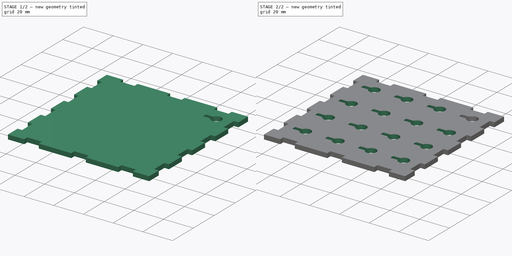
[diagram: build sequence overview — one tinted view per stage of 2, left to right]
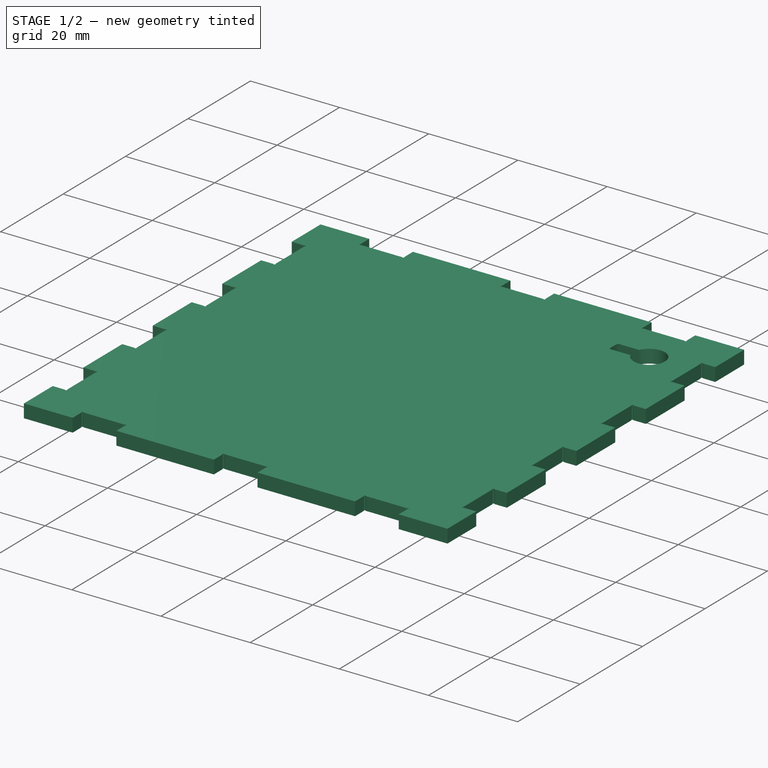
[diagram: stage 1 of 2 — iso view after this stage's code; geometry added in this stage tinted green]
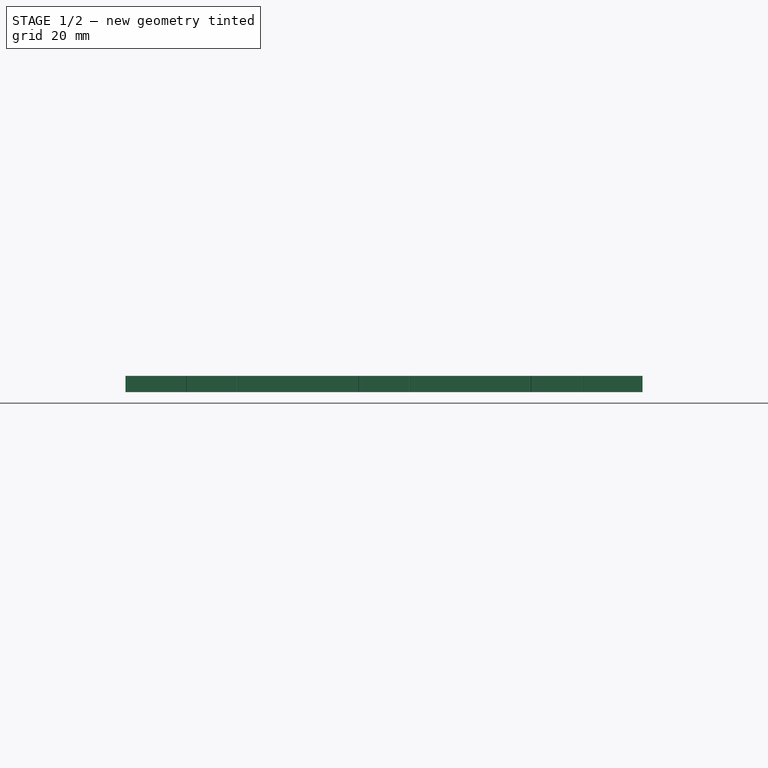
[diagram: stage 1 of 2 — front view after this stage's code; geometry added in this stage tinted green]
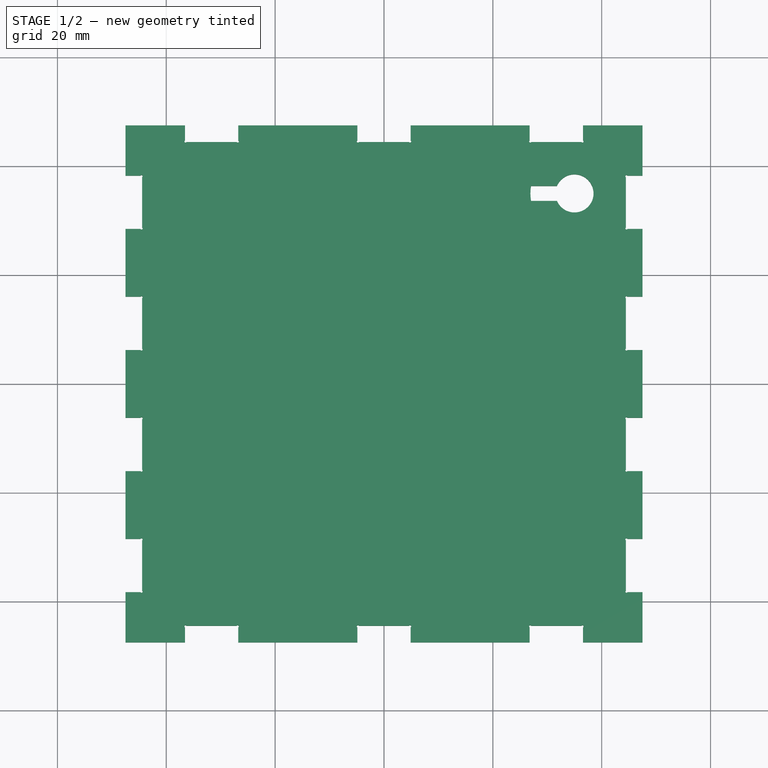
[diagram: stage 1 of 2 — top view after this stage's code; geometry added in this stage tinted green]
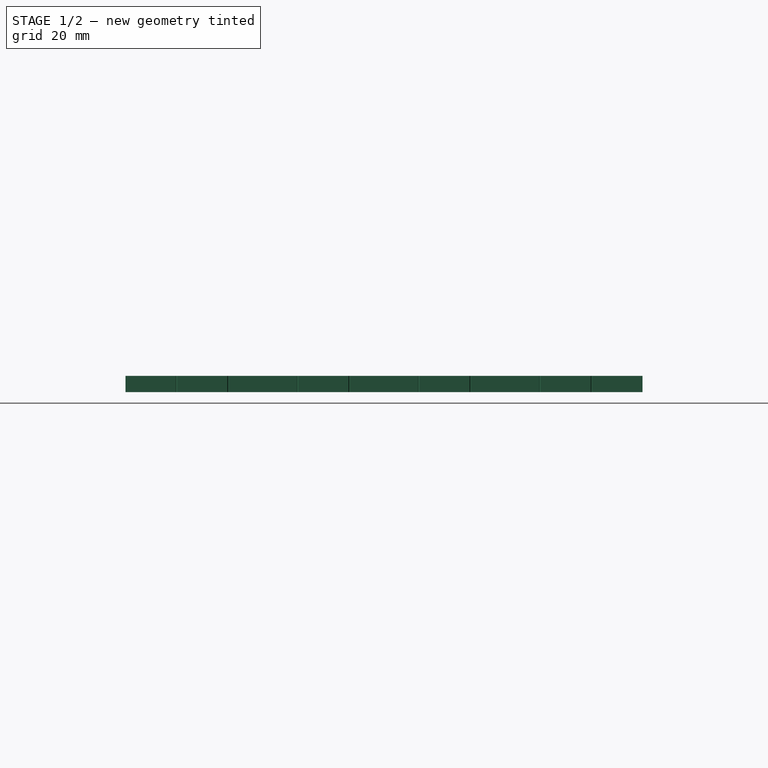
[diagram: stage 1 of 2 — right view after this stage's code; geometry added in this stage tinted green]
FCSTD DOCUMENT  (FreeCAD 0.20R)
Label: finished_box6
License: All rights reserved
LicenseURL: http://en.wikipedia.org/wiki/All_rights_reserved
objects: Part::Feature×6, PartDesign::LinearPattern×2, Sketcher::SketchObject×2, PartDesign::FeatureBase×1, PartDesign::Pocket×1, PartDesign::MultiTransform×1, PartDesign::Body×1
note: 15 computed .brp shape members not serialized (recipe doc carries the construction recipe); baked Part::Feature solids carry a one-line shape summary decoded from their .brp

FEATURE [Part::Feature] face_panel001_tab_tab
  shape: bbox 95 x 3 x 30 mm, 56 faces (baked)
FEATURE [Part::Feature] behind_panel001_tab_tab
  shape: bbox 95 x 3 x 30 mm, 50 faces (baked)
FEATURE [Part::Feature] left_panel001_tab_tab
  shape: bbox 3 x 92 x 30 mm, 60 faces (baked)
FEATURE [Part::Feature] right_panel001_tab_tab
  shape: bbox 3 x 95 x 30 mm, 66 faces (baked)
FEATURE [Part::Feature] bottom_panel001_tab_tab
  shape: bbox 95 x 95 x 3 mm, 104 faces (baked)
FEATURE [PartDesign::LinearPattern] LinearPattern
  Direction = -> X_Axis
  Length = 66
  Occurrences = 4
  Reversed = true
FEATURE [PartDesign::LinearPattern] LinearPattern001
  Direction = -> Y_Axis
  Length = 66
  Occurrences = 4
  Reversed = true
FEATURE [Part::Feature] top_panel001_tab
  shape: bbox 95 x 95 x 3 mm, 104 faces (baked)
FEATURE [PartDesign::FeatureBase] BaseFeature
  BaseFeature = -> top_panel001_tab
FEATURE [Sketcher::SketchObject] Sketch
  FullyConstrained = true
  MapMode = 5
  Placement = pos=(0,0,15) rot=(0,0,1;0rad)
  Support = -> [BaseFeature]
  sketch-geometry (9):
    g0: GeomPoint X=0 Y=35 Z=0
    g1: GeomPoint X=35 Y=0 Z=0
    g2: GeomPoint X=31.5 Y=0 Z=0
    g3: GeomPoint X=35 Y=35 Z=0
    g4: ArcOfCircle CenterX=35 CenterY=35 CenterZ=0 NormalX=0 NormalY=0 NormalZ=1 AngleXU=0 Radius=3.5 StartAngle=3.54431 EndAngle=9.02206
    g5: LineSegment StartX=31.78 StartY=36.3717 StartZ=0 EndX=27.017 EndY=36.3717 EndZ=0
    g6: LineSegment StartX=31.78 StartY=33.6283 StartZ=0 EndX=27.017 EndY=33.6283 EndZ=0
    g7: ArcOfCircle CenterX=35 CenterY=35 CenterZ=0 NormalX=0 NormalY=0 NormalZ=1 AngleXU=0 Radius=8.1 StartAngle=2.97143 EndAngle=3.31176
    g8: GeomPoint X=31.5 Y=35 Z=0
  constraints (22):
    c: PointOnObject(g0,g-2)
    c: Distance(g-1,g0) = 35
    c: PointOnObject(g1,g-1)
    c: Distance(g-1,g1) = 35
    c: PointOnObject(g2,g-1)
    c: Distance(g1,g2) = 3.5
    c: Distance(g1,g3) = 35
    c: Distance(g0,g3) = 35
    c: Coincident(g4,g3)
    c: Radius(g4) = 3.5
    c: Coincident(g7,g4)
    c: Parallel(g5,g-1)
    c: Parallel(g6,g-1)
    c: Radius(g7) = 8.1
    c: Coincident(g5,g7)
    c: Coincident(g6,g7)
    c: Coincident(g5,g4)
    c: Coincident(g6,g4)
    c: Distance(g2,g8) = 35
    c: Distance(g4,g8) = 3.5
    c: Distance(g8,g4) = 1.4
    c: Distance(g8,g4) = 1.4
FEATURE [PartDesign::Pocket] Pocket
  BaseFeature = -> BaseFeature
  Direction = (0,0,-1)
  Length = 5
  Length2 = 5
  Profile = -> Sketch
  ReferenceAxis = -> Sketch [N_Axis]
  Type = 2
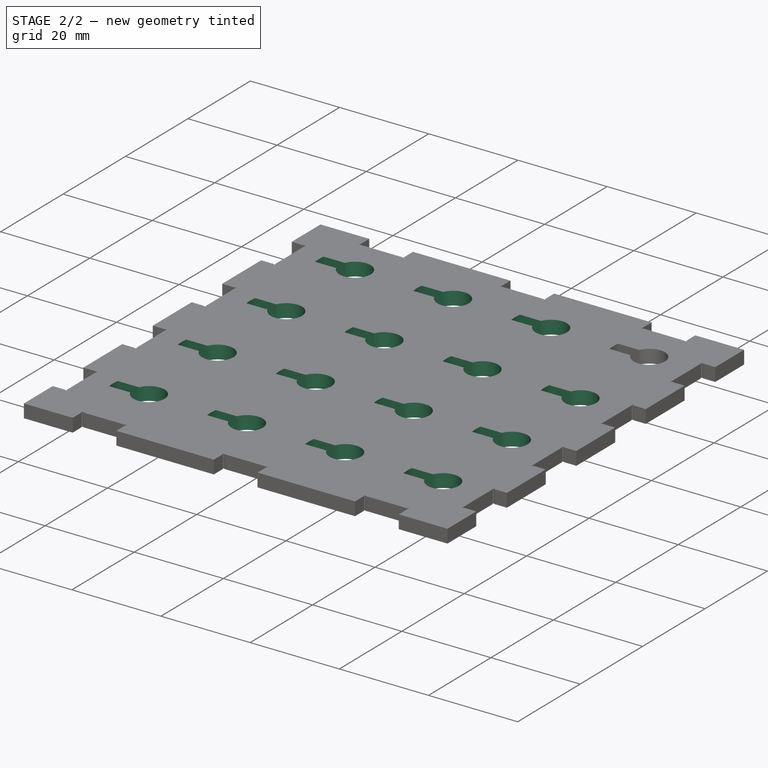
[diagram: stage 2 of 2 — iso view after this stage's code; geometry added in this stage tinted green]
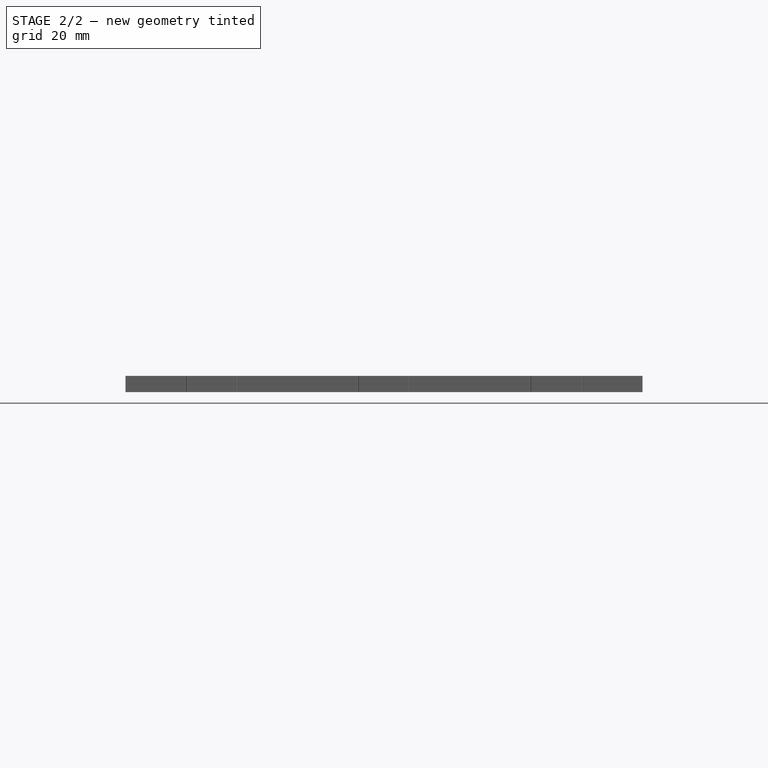
[diagram: stage 2 of 2 — front view after this stage's code; geometry added in this stage tinted green]
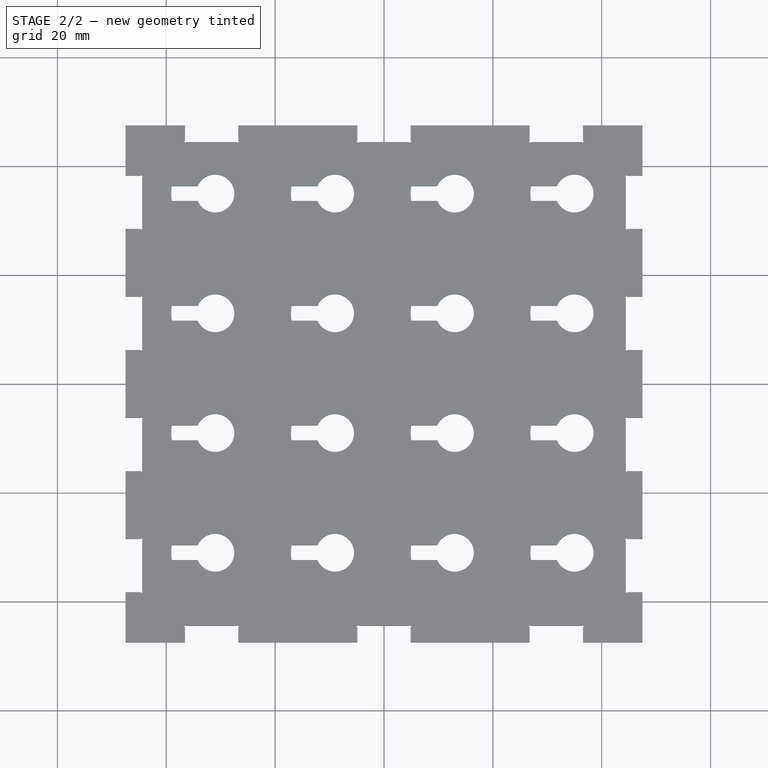
[diagram: stage 2 of 2 — top view after this stage's code; geometry added in this stage tinted green]
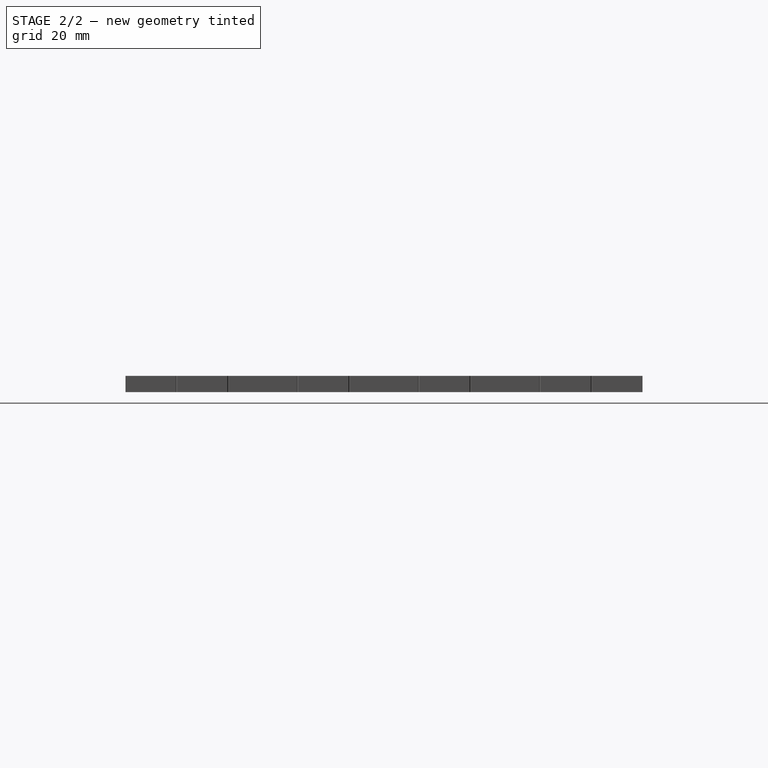
[diagram: stage 2 of 2 — right view after this stage's code; geometry added in this stage tinted green]
FEATURE [PartDesign::MultiTransform] MultiTransform
  BaseFeature = -> Pocket
  Originals = -> [Pocket]
  Transformations = -> [LinearPattern,LinearPattern001]
FEATURE [Sketcher::SketchObject] Sketch001
  FullyConstrained = false
  MapMode = 5
  Placement = pos=(0,0,15) rot=(0,0,1;0rad)
  Support = -> [MultiTransform]
  sketch-geometry (18):
    g0: GeomPoint X=0 Y=35 Z=0
    g1: GeomPoint X=35 Y=0 Z=0
    g2: GeomPoint X=35 Y=35 Z=0
    g3: Circle CenterX=35 CenterY=35 CenterZ=0 NormalX=0 NormalY=0 NormalZ=1 AngleXU=0 Radius=8.5
    g4: LineSegment StartX=35 StartY=35 StartZ=0 EndX=35 EndY=22 EndZ=0
    g5: GeomPoint X=13.0001 Y=35.0787 Z=0
    g6: GeomPoint X=-8.99934 Y=34.9278 Z=0
    g7: GeomPoint X=-30.9992 Y=35 Z=0
    g8: GeomPoint X=-31 Y=0 Z=0
    g9: Circle CenterX=-30.9992 CenterY=35 CenterZ=0 NormalX=0 NormalY=0 NormalZ=1 AngleXU=0 Radius=8.5
    g10: GeomPoint X=-31.0954 Y=13.0002 Z=0
    g11: GeomPoint X=-9.09554 Y=12.928 Z=0
    g12: GeomPoint X=-31.0954 Y=13.0002 Z=0
    g13: GeomPoint X=-30.9465 Y=-8.99929 Z=0
    g14: GeomPoint X=-30.8426 Y=-30.999 Z=0
    g15: Circle CenterX=-30.8426 CenterY=-30.999 CenterZ=0 NormalX=0 NormalY=0 NormalZ=1 AngleXU=0 Radius=8.5
    g16: LineSegment StartX=-30.8426 StartY=-30.999 StartZ=0 EndX=-30.8426 EndY=-43.999 EndZ=0
    g17: LineSegment StartX=-30.9465 StartY=-8.99929 StartZ=0 EndX=-30.9465 EndY=-21.9993 EndZ=0
  constraints (33):
    c: PointOnObject(g0,g-2)
    c: Distance(g0,g-1) = 35
    c: PointOnObject(g1,g-1)
    c: Distance(g-1,g1) = 35
    c: Distance(g1,g2) = 35
    c: Distance(g0,g2) = 35
    c: Coincident(g3,g2)
    c: Diameter(g3) = 17
    c: Coincident(g4,g3)
    c: Vertical(g4)
    c: DistanceY(g4,g4) = 13
    c: Distance(g3,g5) = 22
    c: Distance(g5,g6) = 22
    c: Distance(g6,g7) = 22
    c: PointOnObject(g8,g-1)
    c: Distance(g1,g8) = 66
    c: Distance(g8,g7) = 35
    c: Coincident(g9,g7)
    c: Diameter(g9) = 17
    c: Distance(g9,g10) = 22
    c: Distance(g10,g11) = 22
    c: Distance(g6,g11) = 22
    c: Coincident(g12,g10)
    c: Distance(g13,g10) = 22
    c: Distance(g13,g14) = 22
    c: Coincident(g15,g14)
    c: Diameter(g15) = 17
    c: Coincident(g16,g15)
    c: Vertical(g16)
    c: DistanceY(g16,g16) = 13
    c: Coincident(g17,g13)
    c: Vertical(g17)
    c: DistanceY(g17,g17) = 13
FEATURE [PartDesign::Body] Body
  BaseFeature = -> top_panel001_tab
  Group = -> [BaseFeature,Sketch,Pocket,MultiTransform,LinearPattern,LinearPattern001,Sketch001]
  Origin = -> Origin
  Tip = -> MultiTransform
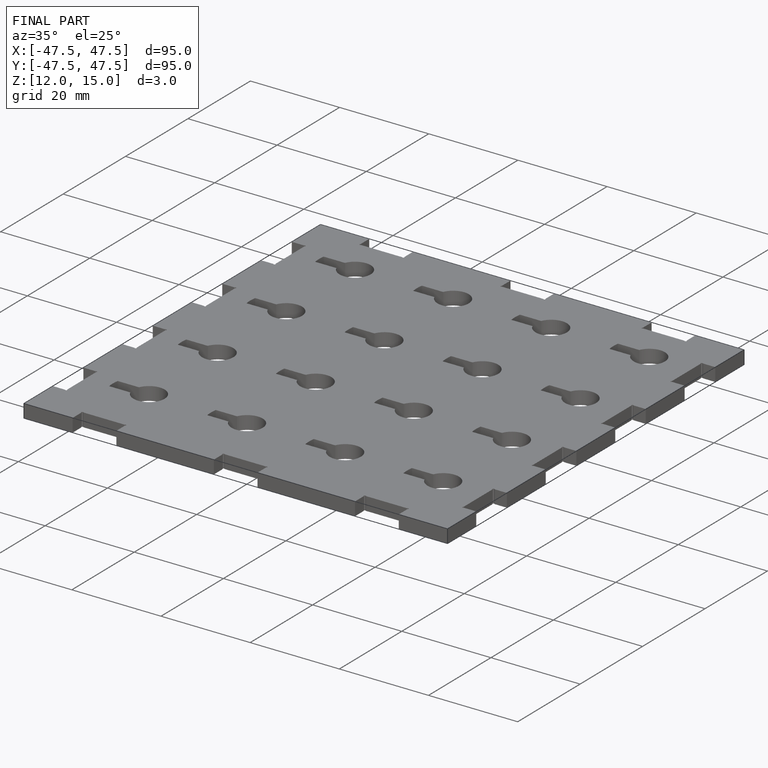
[diagram: finished part — iso view with bounding-box wireframe]
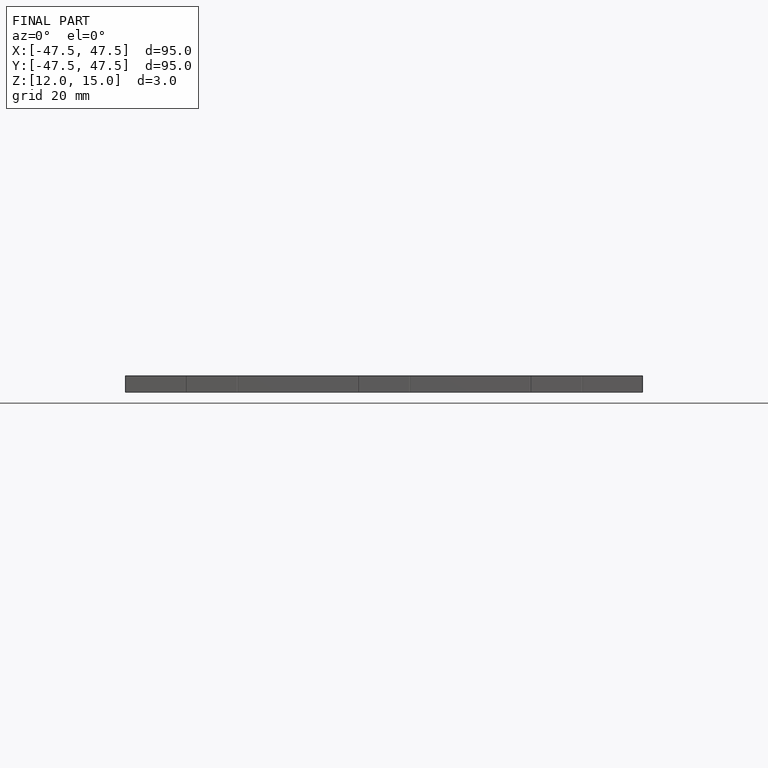
[diagram: finished part — front view with bounding-box wireframe]
